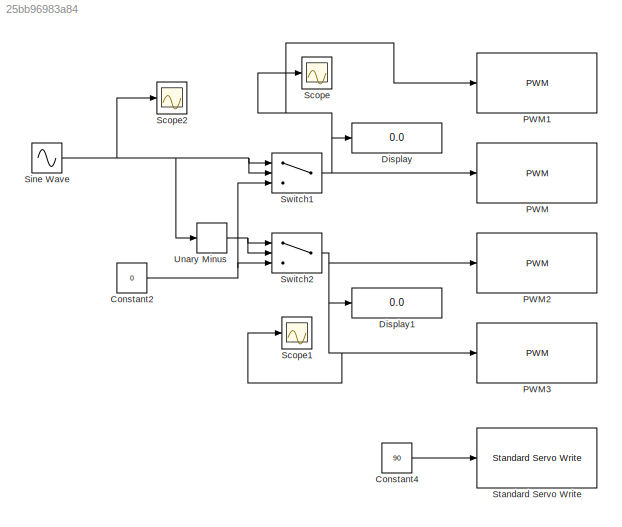
MODEL slx_25bb96983a84
KIND model
CONFIG AbsTol = auto
CONFIG EnableMultiTasking = on
CONFIG FixedStep = auto
CONFIG MaxStep = auto
CONFIG MinStep = auto
CONFIG RelTol = 1e-3
CONFIG SampleTimeConstraint = Unconstrained
CONFIG Solver = FixedStepAuto
CONFIG SolverName = FixedStepAuto
CONFIG StartTime = 0.0
CONFIG StopTime = 10
BLOCK [Constant] Constant2
  OutDataTypeStr = double
  Value = 0
BLOCK [Constant] Constant4
  OutDataTypeStr = double
  Value = 90
BLOCK [Display] Display
  Decimation = 1
  Format = short_e
  Ports = [1]
BLOCK [Display] Display1
  Decimation = 1
  Format = short_e
  Ports = [1]
BLOCK [Reference] PWM  REF=raspberrypilib/PWM
  Ports = [1]
  SourceBlock = raspberrypilib/PWM
  SourceProductBaseCode = RASPPI
  SourceProductName = Simulink Support Package for Raspberry Pi Hardware
  SourceType = raspi.internal.PWMBlock
BLOCK [Reference] PWM1  REF=raspberrypilib/PWM
  Ports = [1]
  SourceBlock = raspberrypilib/PWM
  SourceProductBaseCode = RASPPI
  SourceProductName = Simulink Support Package for Raspberry Pi Hardware
  SourceType = raspi.internal.PWMBlock
BLOCK [Reference] PWM2  REF=raspberrypilib/PWM
  Ports = [1]
  SourceBlock = raspberrypilib/PWM
  SourceProductBaseCode = RASPPI
  SourceProductName = Simulink Support Package for Raspberry Pi Hardware
  SourceType = raspi.internal.PWMBlock
BLOCK [Reference] PWM3  REF=raspberrypilib/PWM
  Ports = [1]
  SourceBlock = raspberrypilib/PWM
  SourceProductBaseCode = RASPPI
  SourceProductName = Simulink Support Package for Raspberry Pi Hardware
  SourceType = raspi.internal.PWMBlock
BLOCK [Scope] Scope
  NumInputPorts = 1
  Ports = [1]
  ScopeSpecificationString = Simulink.scopes.TimeScopeBlockCfg('CurrentConfiguration', extmgr.ConfigurationSet(extmgr.Configuration('Core','General UI',true),extmgr.Configuration('Core','Source UI',true),extmgr.Configuration('Sources','WiredSimulink',true),extmgr.Configuration('Visuals','Time Domain',true,'SerializedDisplays',{struct('MinYLimReal','-0.125','MaxYLimReal','1.125','YLabelReal','','MinYLimMag','0.00000','MaxYLimM...<+1369ch>
BLOCK [Scope] Scope1
  NumInputPorts = 1
  Ports = [1]
  ScopeSpecificationString = Simulink.scopes.TimeScopeBlockCfg('CurrentConfiguration', extmgr.ConfigurationSet(extmgr.Configuration('Core','General UI',true),extmgr.Configuration('Core','Source UI',true),extmgr.Configuration('Sources','WiredSimulink',true,'DataLoggingVariableName','ScopeData1'),extmgr.Configuration('Visuals','Time Domain',true,'SerializedDisplays',{struct('MinYLimReal','-0.11296','MaxYLimReal','1.01665','YLab...<+1420ch>
BLOCK [Scope] Scope2
  NumInputPorts = 1
  Ports = [1]
  ScopeSpecificationString = Simulink.scopes.TimeScopeBlockCfg('CurrentConfiguration', extmgr.ConfigurationSet(extmgr.Configuration('Core','General UI',true),extmgr.Configuration('Core','Source UI',true),extmgr.Configuration('Sources','WiredSimulink',true,'DataLoggingVariableName','ScopeData1'),extmgr.Configuration('Visuals','Time Domain',true,'SerializedDisplays',{struct('MinYLimReal','-1.14165','MaxYLimReal','1.23796','YLab...<+1423ch>
BLOCK [Sin] Sine Wave
  Frequency = 5
  Phase = pi/2
  Ports = [0, 1]
  SampleTime = 1
BLOCK [Reference] Standard Servo Write  REF=raspberrypilib/Standard Servo Write
  Ports = [1]
  SourceBlock = raspberrypilib/Standard Servo Write
  SourceProductBaseCode = RASPPI
  SourceProductName = Simulink Support Package for Raspberry Pi Hardware
  SourceType = raspi.internal.ServoBlock
BLOCK [Switch] Switch1
  Criteria = u2 > Threshold
  InputSameDT = off
  OutDataTypeStr = double
  SaturateOnIntegerOverflow = off
BLOCK [Switch] Switch2
  Criteria = u2 > Threshold
  InputSameDT = off
  OutDataTypeStr = double
  SaturateOnIntegerOverflow = off
BLOCK [UnaryMinus] Unary Minus
NET Constant2:1 -> Switch1:3, Switch2:3
LINE Constant4:1 -> Standard Servo Write:1
NET Sine Wave:1 -> Scope2:1, Switch1:1, Switch1:2, Unary Minus:1
NET Switch1:1 -> Display:1, PWM1:1, PWM:1, Scope:1
NET Switch2:1 -> Display1:1, PWM2:1, PWM3:1, Scope1:1
NET Unary Minus:1 -> Switch2:1, Switch2:2
note: NET lines group one-source signal fan-out (src -> all destinations, sorted); 1:1 wires keep LINE
